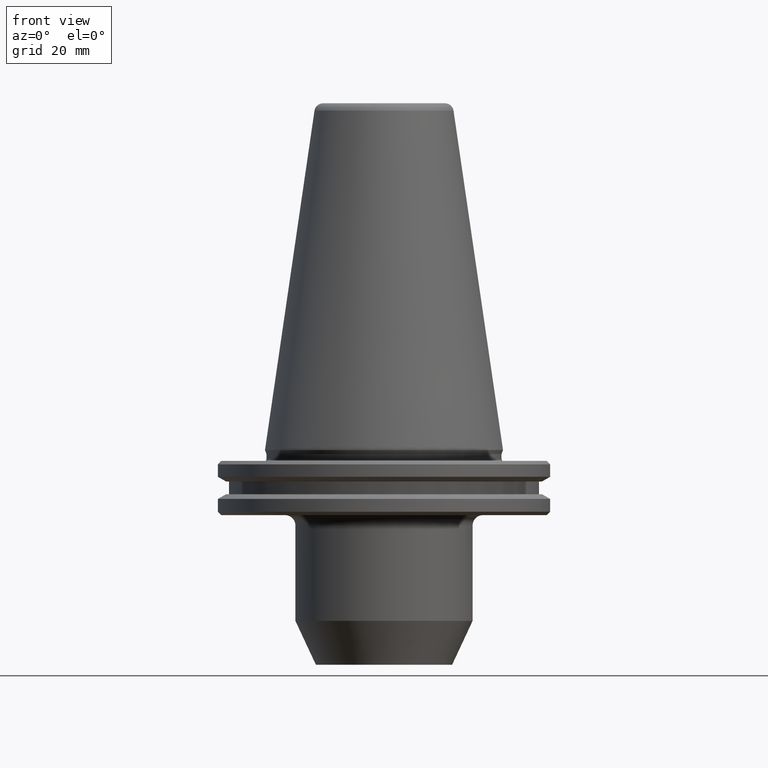
[diagram: clean part render]
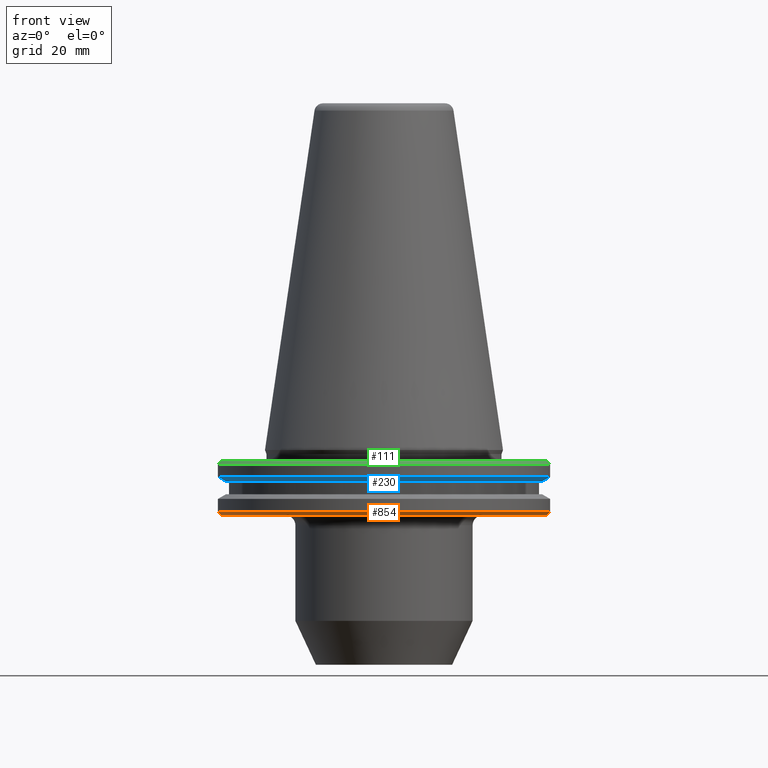
[diagram: same view with three faces highlighted in distinct colors, each labeled with its STEP entity id]
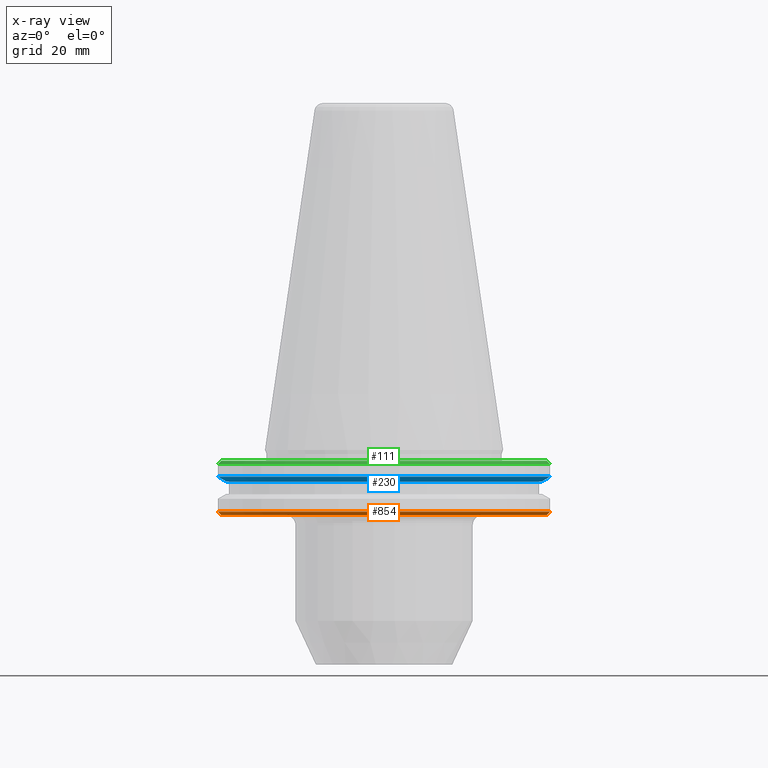
[diagram: x-ray of the same camera — body ghosted, the three highlighted faces saturated]
A machine part, front view with three faces highlighted in distinct colors.
The next image is the same camera in x-ray (body ghosted, the three faces saturated) — at least one of them is partly hidden behind the body in this view.
Their STEP definitions:

[orange] entity #854 — the highlighted conical surface has half-angle 45 deg.
#10 = ORIENTED_EDGE ( 'NONE', *, *, #597, .T. ) ;
#73 = VERTEX_POINT ( 'NONE', #736 ) ;
#83 = DIRECTION ( 'NONE',  ( 1.000000000000000000, 0.0000000000000000000, 0.0000000000000000000 ) ) ;
#143 = LINE ( 'NONE', #145, #990 ) ;
#145 = CARTESIAN_POINT ( 'NONE',  ( 47.74999999999973700, 0.0000000000000000000, -19.09999999999995200 ) ) ;
#196 = AXIS2_PLACEMENT_3D ( 'NONE', #918, #991, #232 ) ;
#227 = EDGE_CURVE ( 'NONE', #287, #998, #143, .T. ) ;
#232 = DIRECTION ( 'NONE',  ( 1.000000000000000000, 0.0000000000000000000, 0.0000000000000000000 ) ) ;
#237 = CARTESIAN_POINT ( 'NONE',  ( 48.75000000000018500, 0.0000000000000000000, -18.09999999999950400 ) ) ;
#250 = DIRECTION ( 'NONE',  ( 0.7071067811865474600, 0.0000000000000000000, 0.7071067811865475700 ) ) ;
#273 = LINE ( 'NONE', #346, #873 ) ;
#277 = CONICAL_SURFACE ( 'NONE', #196, 47.74999999999973700, 0.7853981633974482800 ) ;
#287 = VERTEX_POINT ( 'NONE', #494 ) ;
#296 = DIRECTION ( 'NONE',  ( -0.0000000000000000000, -0.0000000000000000000, 1.000000000000000000 ) ) ;
#346 = CARTESIAN_POINT ( 'NONE',  ( -47.74999999999973700, 5.847688465928579700E-015, -19.09999999999995200 ) ) ;
#361 = EDGE_CURVE ( 'NONE', #73, #436, #273, .T. ) ;
#436 = VERTEX_POINT ( 'NONE', #674 ) ;
#453 = ORIENTED_EDGE ( 'NONE', *, *, #812, .F. ) ;
#494 = CARTESIAN_POINT ( 'NONE',  ( 47.74999999999973700, 0.0000000000000000000, -19.09999999999995200 ) ) ;
#542 = FACE_OUTER_BOUND ( 'NONE', #764, .T. ) ;
#546 = DIRECTION ( 'NONE',  ( 1.000000000000000000, 0.0000000000000000000, 0.0000000000000000000 ) ) ;
#597 = EDGE_CURVE ( 'NONE', #73, #287, #962, .T. ) ;
#645 = ORIENTED_EDGE ( 'NONE', *, *, #227, .T. ) ;
#674 = CARTESIAN_POINT ( 'NONE',  ( -48.75000000000018500, 5.970153145843369200E-015, -18.09999999999950400 ) ) ;
#695 = AXIS2_PLACEMENT_3D ( 'NONE', #839, #296, #546 ) ;
#733 = AXIS2_PLACEMENT_3D ( 'NONE', #908, #756, #83 ) ;
#736 = CARTESIAN_POINT ( 'NONE',  ( -47.74999999999973700, 5.908920805885974100E-015, -19.09999999999995200 ) ) ;
#756 = DIRECTION ( 'NONE',  ( -0.0000000000000000000, -0.0000000000000000000, 1.000000000000000000 ) ) ;
#764 = EDGE_LOOP ( 'NONE', ( #934, #10, #645, #453 ) ) ;
#812 = EDGE_CURVE ( 'NONE', #436, #998, #993, .T. ) ;
#839 = CARTESIAN_POINT ( 'NONE',  ( 0.0000000000000000000, 0.0000000000000000000, -18.09999999999950400 ) ) ;
#854 = ADVANCED_FACE ( 'NONE', ( #542 ), #277, .T. ) ;
#873 = VECTOR ( 'NONE', #943, 1000.000000000000000 ) ;
#908 = CARTESIAN_POINT ( 'NONE',  ( 0.0000000000000000000, 0.0000000000000000000, -19.09999999999995200 ) ) ;
#918 = CARTESIAN_POINT ( 'NONE',  ( 0.0000000000000000000, 0.0000000000000000000, -19.09999999999995200 ) ) ;
#934 = ORIENTED_EDGE ( 'NONE', *, *, #361, .F. ) ;
#943 = DIRECTION ( 'NONE',  ( -0.7071067811865474600, 8.659560562354931600E-017, 0.7071067811865475700 ) ) ;
#962 = CIRCLE ( 'NONE', #733, 47.74999999999973700 ) ;
#990 = VECTOR ( 'NONE', #250, 1000.000000000000000 ) ;
#991 = DIRECTION ( 'NONE',  ( -0.0000000000000000000, -0.0000000000000000000, 1.000000000000000000 ) ) ;
#993 = CIRCLE ( 'NONE', #695, 48.75000000000018500 ) ;
#998 = VERTEX_POINT ( 'NONE', #237 ) ;

[blue] entity #230 — the highlighted conical surface has half-angle 60 deg.
#13 = DIRECTION ( 'NONE',  ( 1.000000000000000000, 0.0000000000000000000, 0.0000000000000000000 ) ) ;
#19 = CARTESIAN_POINT ( 'NONE',  ( 0.0000000000000000000, 0.0000000000000000000, -9.224999999999926800 ) ) ;
#54 = CARTESIAN_POINT ( 'NONE',  ( 46.37259526419079900, 0.0000000000000000000, -9.224999999999926800 ) ) ;
#109 = ORIENTED_EDGE ( 'NONE', *, *, #213, .T. ) ;
#147 = DIRECTION ( 'NONE',  ( -0.8660254037844421500, 1.060575238724911200E-016, 0.4999999999999939500 ) ) ;
#156 = ORIENTED_EDGE ( 'NONE', *, *, #424, .F. ) ;
#169 = DIRECTION ( 'NONE',  ( 0.8660254037844421500, 0.0000000000000000000, 0.4999999999999939500 ) ) ;
#182 = DIRECTION ( 'NONE',  ( 1.000000000000000000, 0.0000000000000000000, 0.0000000000000000000 ) ) ;
#213 = EDGE_CURVE ( 'NONE', #382, #816, #973, .T. ) ;
#230 = ADVANCED_FACE ( 'NONE', ( #350 ), #295, .T. ) ;
#239 = EDGE_LOOP ( 'NONE', ( #523, #109, #595, #156 ) ) ;
#295 = CONICAL_SURFACE ( 'NONE', #469, 46.37259526419079900, 1.047197551196604700 ) ;
#338 = AXIS2_PLACEMENT_3D ( 'NONE', #956, #456, #13 ) ;
#339 = AXIS2_PLACEMENT_3D ( 'NONE', #895, #437, #865 ) ;
#350 = FACE_OUTER_BOUND ( 'NONE', #239, .T. ) ;
#382 = VERTEX_POINT ( 'NONE', #432 ) ;
#394 = CARTESIAN_POINT ( 'NONE',  ( -46.37259526419079900, 5.679005035844697300E-015, -9.224999999999926800 ) ) ;
#409 = VECTOR ( 'NONE', #169, 1000.000000000000000 ) ;
#424 = EDGE_CURVE ( 'NONE', #675, #722, #678, .T. ) ;
#432 = CARTESIAN_POINT ( 'NONE',  ( -46.37259526419079900, 5.824579090844020300E-015, -9.224999999999926800 ) ) ;
#437 = DIRECTION ( 'NONE',  ( -0.0000000000000000000, -0.0000000000000000000, 1.000000000000000000 ) ) ;
#456 = DIRECTION ( 'NONE',  ( -0.0000000000000000000, -0.0000000000000000000, 1.000000000000000000 ) ) ;
#469 = AXIS2_PLACEMENT_3D ( 'NONE', #19, #655, #182 ) ;
#523 = ORIENTED_EDGE ( 'NONE', *, *, #809, .F. ) ;
#544 = CARTESIAN_POINT ( 'NONE',  ( 48.74999999999995700, 0.0000000000000000000, -7.852404735807838600 ) ) ;
#593 = LINE ( 'NONE', #394, #793 ) ;
#595 = ORIENTED_EDGE ( 'NONE', *, *, #797, .T. ) ;
#615 = LINE ( 'NONE', #644, #409 ) ;
#644 = CARTESIAN_POINT ( 'NONE',  ( 46.37259526419079900, 0.0000000000000000000, -9.224999999999926800 ) ) ;
#655 = DIRECTION ( 'NONE',  ( -0.0000000000000000000, -0.0000000000000000000, 1.000000000000000000 ) ) ;
#675 = VERTEX_POINT ( 'NONE', #831 ) ;
#678 = CIRCLE ( 'NONE', #339, 48.74999999999995700 ) ;
#722 = VERTEX_POINT ( 'NONE', #544 ) ;
#793 = VECTOR ( 'NONE', #147, 1000.000000000000000 ) ;
#797 = EDGE_CURVE ( 'NONE', #816, #722, #615, .T. ) ;
#809 = EDGE_CURVE ( 'NONE', #382, #675, #593, .T. ) ;
#816 = VERTEX_POINT ( 'NONE', #54 ) ;
#831 = CARTESIAN_POINT ( 'NONE',  ( -48.74999999999995700, 5.970153145843342400E-015, -7.852404735807838600 ) ) ;
#865 = DIRECTION ( 'NONE',  ( 1.000000000000000000, 0.0000000000000000000, 0.0000000000000000000 ) ) ;
#895 = CARTESIAN_POINT ( 'NONE',  ( 0.0000000000000000000, 0.0000000000000000000, -7.852404735807838600 ) ) ;
#956 = CARTESIAN_POINT ( 'NONE',  ( 0.0000000000000000000, 0.0000000000000000000, -9.224999999999926800 ) ) ;
#973 = CIRCLE ( 'NONE', #338, 46.37259526419079900 ) ;

[green] entity #111 — the highlighted conical surface has half-angle 45 deg.
#16 = ORIENTED_EDGE ( 'NONE', *, *, #407, .F. ) ;
#32 = DIRECTION ( 'NONE',  ( 1.000000000000000000, 0.0000000000000000000, 0.0000000000000000000 ) ) ;
#111 = ADVANCED_FACE ( 'NONE', ( #885 ), #612, .T. ) ;
#113 = EDGE_CURVE ( 'NONE', #342, #607, #807, .T. ) ;
#134 = CARTESIAN_POINT ( 'NONE',  ( 48.74999999999995700, 0.0000000000000000000, -4.199999999999870500 ) ) ;
#142 = ORIENTED_EDGE ( 'NONE', *, *, #113, .T. ) ;
#152 = AXIS2_PLACEMENT_3D ( 'NONE', #968, #802, #270 ) ;
#154 = DIRECTION ( 'NONE',  ( 0.0000000000000000000, 0.0000000000000000000, -1.000000000000000000 ) ) ;
#162 = VECTOR ( 'NONE', #321, 1000.000000000000000 ) ;
#223 = ORIENTED_EDGE ( 'NONE', *, *, #584, .F. ) ;
#270 = DIRECTION ( 'NONE',  ( 1.000000000000000000, 0.0000000000000000000, 0.0000000000000000000 ) ) ;
#302 = DIRECTION ( 'NONE',  ( -0.7071067811865474600, 0.0000000000000000000, -0.7071067811865475700 ) ) ;
#321 = DIRECTION ( 'NONE',  ( 0.7071067811865474600, 8.659560562354931600E-017, -0.7071067811865475700 ) ) ;
#330 = LINE ( 'NONE', #844, #878 ) ;
#342 = VERTEX_POINT ( 'NONE', #367 ) ;
#367 = CARTESIAN_POINT ( 'NONE',  ( -48.74999999999995700, 5.970153145843342400E-015, -4.199999999999870500 ) ) ;
#368 = ORIENTED_EDGE ( 'NONE', *, *, #889, .T. ) ;
#372 = VERTEX_POINT ( 'NONE', #892 ) ;
#373 = CARTESIAN_POINT ( 'NONE',  ( 0.0000000000000000000, 0.0000000000000000000, -4.199999999999870500 ) ) ;
#407 = EDGE_CURVE ( 'NONE', #372, #662, #470, .T. ) ;
#470 = CIRCLE ( 'NONE', #152, 47.74999999999995700 ) ;
#510 = DIRECTION ( 'NONE',  ( -0.0000000000000000000, -0.0000000000000000000, 1.000000000000000000 ) ) ;
#524 = CARTESIAN_POINT ( 'NONE',  ( 48.74999999999995700, 5.970153145843342400E-015, -4.199999999999870500 ) ) ;
#528 = CARTESIAN_POINT ( 'NONE',  ( 47.74999999999995700, 5.908920805885974100E-015, -3.199999999999869600 ) ) ;
#584 = EDGE_CURVE ( 'NONE', #662, #607, #758, .T. ) ;
#607 = VERTEX_POINT ( 'NONE', #134 ) ;
#612 = CONICAL_SURFACE ( 'NONE', #947, 48.74999999999995700, 0.7853981633974482800 ) ;
#657 = CARTESIAN_POINT ( 'NONE',  ( 0.0000000000000000000, 0.0000000000000000000, -4.199999999999870500 ) ) ;
#662 = VERTEX_POINT ( 'NONE', #528 ) ;
#734 = DIRECTION ( 'NONE',  ( -1.000000000000000000, 0.0000000000000000000, 0.0000000000000000000 ) ) ;
#754 = EDGE_LOOP ( 'NONE', ( #223, #16, #368, #142 ) ) ;
#758 = LINE ( 'NONE', #524, #162 ) ;
#784 = AXIS2_PLACEMENT_3D ( 'NONE', #657, #510, #32 ) ;
#802 = DIRECTION ( 'NONE',  ( -0.0000000000000000000, -0.0000000000000000000, 1.000000000000000000 ) ) ;
#807 = CIRCLE ( 'NONE', #784, 48.74999999999995700 ) ;
#844 = CARTESIAN_POINT ( 'NONE',  ( -48.74999999999995700, 0.0000000000000000000, -4.199999999999870500 ) ) ;
#878 = VECTOR ( 'NONE', #302, 1000.000000000000000 ) ;
#885 = FACE_OUTER_BOUND ( 'NONE', #754, .T. ) ;
#889 = EDGE_CURVE ( 'NONE', #372, #342, #330, .T. ) ;
#892 = CARTESIAN_POINT ( 'NONE',  ( -47.74999999999995700, 0.0000000000000000000, -3.199999999999869600 ) ) ;
#947 = AXIS2_PLACEMENT_3D ( 'NONE', #373, #154, #734 ) ;
#968 = CARTESIAN_POINT ( 'NONE',  ( 0.0000000000000000000, 0.0000000000000000000, -3.199999999999869600 ) ) ;